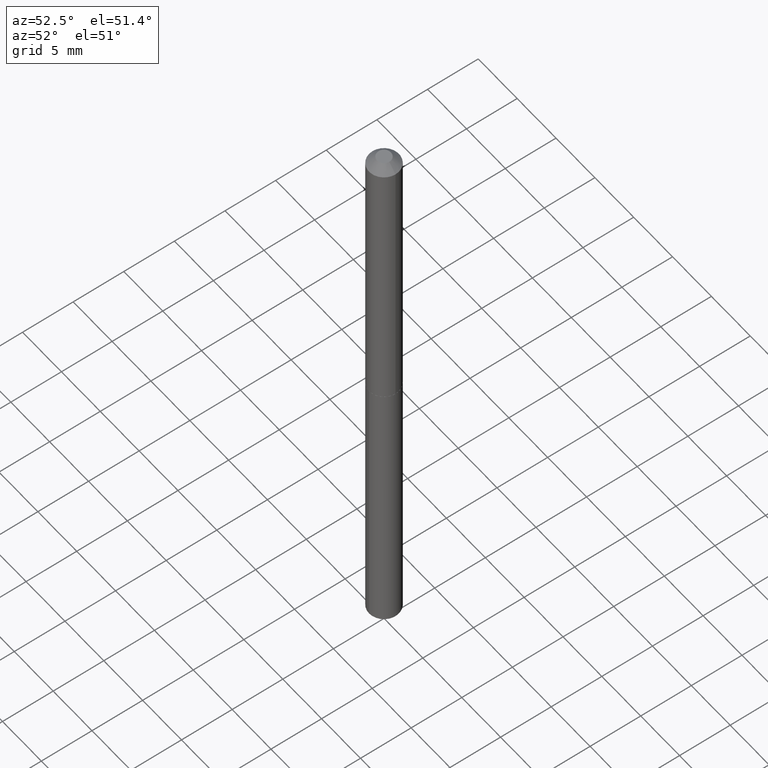
[diagram: clean part render]
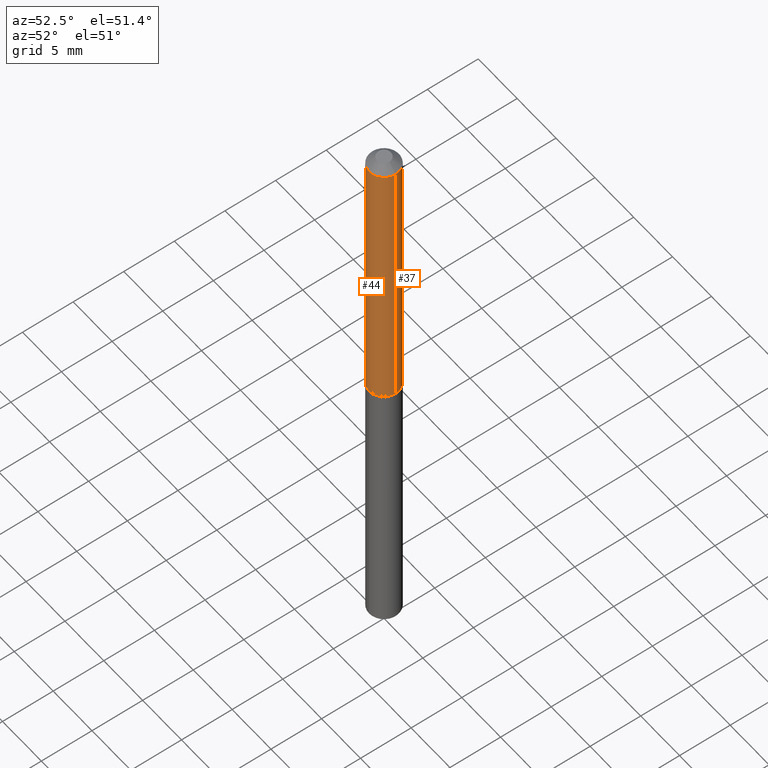
[diagram: same view with one multi-face feature highlighted, each face labeled with its STEP entity id]
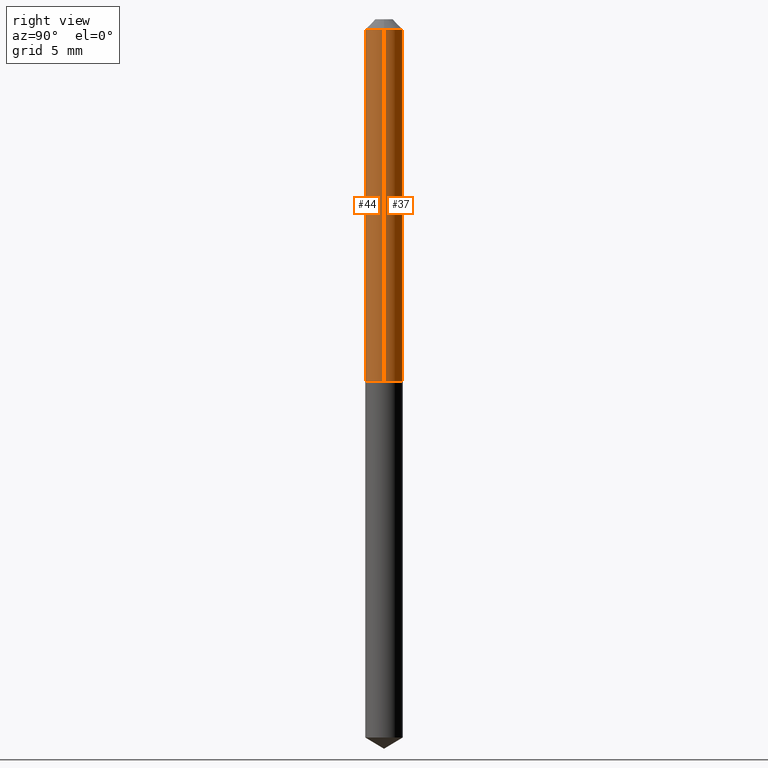
[diagram: same view with one multi-face feature highlighted, each face labeled with its STEP entity id]
A machine part, auxiliary view. The highlighted faces form ONE feature: a constant-radius fillet chain: 2 tangent blend faces with common blend radius 1.4732 mm. The faces share edges in the B-rep.
A second angle (right view) of the same feature is appended — it is thin or edge-on in the first view.
Their STEP definitions:
[1] entity #37 (Cylinder):
#11 = DIRECTION ( 'NONE',  ( -2.445468806185136877E-29, 3.491481338843145188E-15, 1.000000000000000000 ) ) ;
#12 = ORIENTED_EDGE ( 'NONE', *, *, #155, .T. ) ;
#32 = VECTOR ( 'NONE', #11, 39.37007874015748143 ) ;
#37 = ADVANCED_FACE ( 'NONE', ( #66 ), #168, .T. ) ;
#39 = ORIENTED_EDGE ( 'NONE', *, *, #336, .T. ) ;
#49 = AXIS2_PLACEMENT_3D ( 'NONE', #368, #166, #291 ) ;
#66 = FACE_OUTER_BOUND ( 'NONE', #371, .T. ) ;
#67 = CARTESIAN_POINT ( 'NONE',  ( 7.642090019328602662E-31, -1.091087918388490267E-16, -0.03125000000000020817 ) ) ;
#97 = DIRECTION ( 'NONE',  ( 1.000000000000000000, -6.982962677686266711E-15, 0.000000000000000000 ) ) ;
#106 = VERTEX_POINT ( 'NONE', #141 ) ;
#115 = VECTOR ( 'NONE', #254, 39.37007874015748143 ) ;
#123 = DIRECTION ( 'NONE',  ( -2.445468806185136597E-29, 3.491481338843145583E-15, 1.000000000000000000 ) ) ;
#125 = CIRCLE ( 'NONE', #147, 0.05800000000000014172 ) ;
#129 = CARTESIAN_POINT ( 'NONE',  ( -0.05800000000000000294, -1.589813325918329827E-15, -0.03125000000000020817 ) ) ;
#141 = CARTESIAN_POINT ( 'NONE',  ( -0.05800000000000014172, -3.482632646738670605E-15, -1.115500000000000158 ) ) ;
#147 = AXIS2_PLACEMENT_3D ( 'NONE', #384, #152, #211 ) ;
#152 = DIRECTION ( 'NONE',  ( -2.445468806185136597E-29, 3.491481338843145583E-15, 1.000000000000000000 ) ) ;
#155 = EDGE_CURVE ( 'NONE', #106, #377, #296, .T. ) ;
#166 = DIRECTION ( 'NONE',  ( -2.445468806185136597E-29, 3.491481338843145583E-15, 1.000000000000000000 ) ) ;
#168 = CYLINDRICAL_SURFACE ( 'NONE', #49, 0.05800000000000007233 ) ;
#198 = VERTEX_POINT ( 'NONE', #246 ) ;
#209 = CARTESIAN_POINT ( 'NONE',  ( 0.05800000000000000294, -5.141206271446525225E-16, -0.03125000000000020817 ) ) ;
#211 = DIRECTION ( 'NONE',  ( 1.000000000000000000, -6.982962677686265922E-15, 0.000000000000000000 ) ) ;
#238 = CARTESIAN_POINT ( 'NONE',  ( -0.05800000000000007233, 4.121147867408586217E-16, -2.852982352347848756E-30 ) ) ;
#246 = CARTESIAN_POINT ( 'NONE',  ( 0.05800000000000014172, -4.299759268785333684E-15, -1.115500000000000158 ) ) ;
#248 = EDGE_CURVE ( 'NONE', #375, #377, #365, .T. ) ;
#253 = LINE ( 'NONE', #389, #115 ) ;
#254 = DIRECTION ( 'NONE',  ( -2.445468806185136877E-29, 3.491481338843145188E-15, 1.000000000000000000 ) ) ;
#291 = DIRECTION ( 'NONE',  ( 1.000000000000000000, -6.982962677686266711E-15, 4.876176775795935793E-29 ) ) ;
#296 = LINE ( 'NONE', #238, #32 ) ;
#308 = ORIENTED_EDGE ( 'NONE', *, *, #387, .F. ) ;
#336 = EDGE_CURVE ( 'NONE', #198, #106, #125, .T. ) ;
#343 = ORIENTED_EDGE ( 'NONE', *, *, #248, .F. ) ;
#365 = CIRCLE ( 'NONE', #379, 0.05800000000000000294 ) ;
#368 = CARTESIAN_POINT ( 'NONE',  ( 0.000000000000000000, 0.000000000000000000, 0.000000000000000000 ) ) ;
#371 = EDGE_LOOP ( 'NONE', ( #39, #12, #343, #308 ) ) ;
#375 = VERTEX_POINT ( 'NONE', #209 ) ;
#377 = VERTEX_POINT ( 'NONE', #129 ) ;
#379 = AXIS2_PLACEMENT_3D ( 'NONE', #67, #123, #97 ) ;
#384 = CARTESIAN_POINT ( 'NONE',  ( 2.727920453299520488E-29, -3.894747433479529868E-15, -1.115500000000000158 ) ) ;
#387 = EDGE_CURVE ( 'NONE', #198, #375, #253, .T. ) ;
#389 = CARTESIAN_POINT ( 'NONE',  ( 0.05800000000000007233, -4.050118353058039642E-16, 2.828182529961646347E-30 ) ) ;
[2] entity #44 (Cylinder):
#3 = FACE_OUTER_BOUND ( 'NONE', #266, .T. ) ;
#11 = DIRECTION ( 'NONE',  ( -2.445468806185136877E-29, 3.491481338843145188E-15, 1.000000000000000000 ) ) ;
#32 = VECTOR ( 'NONE', #11, 39.37007874015748143 ) ;
#44 = ADVANCED_FACE ( 'NONE', ( #3 ), #139, .T. ) ;
#45 = ORIENTED_EDGE ( 'NONE', *, *, #326, .T. ) ;
#52 = CARTESIAN_POINT ( 'NONE',  ( 2.727920453299520488E-29, -3.894747433479529868E-15, -1.115500000000000158 ) ) ;
#56 = CARTESIAN_POINT ( 'NONE',  ( 7.642090019328602662E-31, -1.091087918388490267E-16, -0.03125000000000020817 ) ) ;
#62 = CIRCLE ( 'NONE', #215, 0.05800000000000014172 ) ;
#78 = DIRECTION ( 'NONE',  ( -2.445468806185136597E-29, 3.491481338843145583E-15, 1.000000000000000000 ) ) ;
#80 = DIRECTION ( 'NONE',  ( 1.000000000000000000, -6.982962677686265922E-15, 0.000000000000000000 ) ) ;
#99 = CIRCLE ( 'NONE', #183, 0.05800000000000000294 ) ;
#106 = VERTEX_POINT ( 'NONE', #141 ) ;
#115 = VECTOR ( 'NONE', #254, 39.37007874015748143 ) ;
#129 = CARTESIAN_POINT ( 'NONE',  ( -0.05800000000000000294, -1.589813325918329827E-15, -0.03125000000000020817 ) ) ;
#135 = DIRECTION ( 'NONE',  ( 1.000000000000000000, -6.982962677686266711E-15, 4.876176775795935793E-29 ) ) ;
#139 = CYLINDRICAL_SURFACE ( 'NONE', #337, 0.05800000000000007233 ) ;
#141 = CARTESIAN_POINT ( 'NONE',  ( -0.05800000000000014172, -3.482632646738670605E-15, -1.115500000000000158 ) ) ;
#151 = DIRECTION ( 'NONE',  ( 1.000000000000000000, -6.982962677686266711E-15, 0.000000000000000000 ) ) ;
#155 = EDGE_CURVE ( 'NONE', #106, #377, #296, .T. ) ;
#183 = AXIS2_PLACEMENT_3D ( 'NONE', #56, #78, #151 ) ;
#187 = EDGE_CURVE ( 'NONE', #377, #375, #99, .T. ) ;
#198 = VERTEX_POINT ( 'NONE', #246 ) ;
#209 = CARTESIAN_POINT ( 'NONE',  ( 0.05800000000000000294, -5.141206271446525225E-16, -0.03125000000000020817 ) ) ;
#213 = ORIENTED_EDGE ( 'NONE', *, *, #187, .F. ) ;
#215 = AXIS2_PLACEMENT_3D ( 'NONE', #52, #355, #80 ) ;
#238 = CARTESIAN_POINT ( 'NONE',  ( -0.05800000000000007233, 4.121147867408586217E-16, -2.852982352347848756E-30 ) ) ;
#246 = CARTESIAN_POINT ( 'NONE',  ( 0.05800000000000014172, -4.299759268785333684E-15, -1.115500000000000158 ) ) ;
#253 = LINE ( 'NONE', #389, #115 ) ;
#254 = DIRECTION ( 'NONE',  ( -2.445468806185136877E-29, 3.491481338843145188E-15, 1.000000000000000000 ) ) ;
#266 = EDGE_LOOP ( 'NONE', ( #292, #45, #294, #213 ) ) ;
#292 = ORIENTED_EDGE ( 'NONE', *, *, #155, .F. ) ;
#294 = ORIENTED_EDGE ( 'NONE', *, *, #387, .T. ) ;
#296 = LINE ( 'NONE', #238, #32 ) ;
#323 = CARTESIAN_POINT ( 'NONE',  ( 0.000000000000000000, 0.000000000000000000, 0.000000000000000000 ) ) ;
#326 = EDGE_CURVE ( 'NONE', #106, #198, #62, .T. ) ;
#337 = AXIS2_PLACEMENT_3D ( 'NONE', #323, #370, #135 ) ;
#355 = DIRECTION ( 'NONE',  ( -2.445468806185136597E-29, 3.491481338843145583E-15, 1.000000000000000000 ) ) ;
#370 = DIRECTION ( 'NONE',  ( -2.445468806185136597E-29, 3.491481338843145583E-15, 1.000000000000000000 ) ) ;
#375 = VERTEX_POINT ( 'NONE', #209 ) ;
#377 = VERTEX_POINT ( 'NONE', #129 ) ;
#387 = EDGE_CURVE ( 'NONE', #198, #375, #253, .T. ) ;
#389 = CARTESIAN_POINT ( 'NONE',  ( 0.05800000000000007233, -4.050118353058039642E-16, 2.828182529961646347E-30 ) ) ;